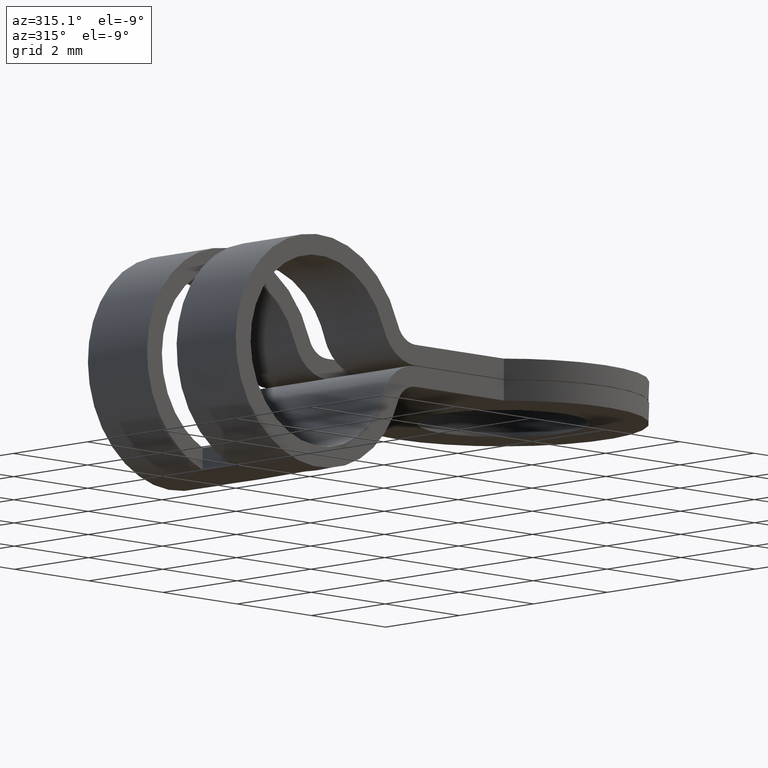
[diagram: clean part render]
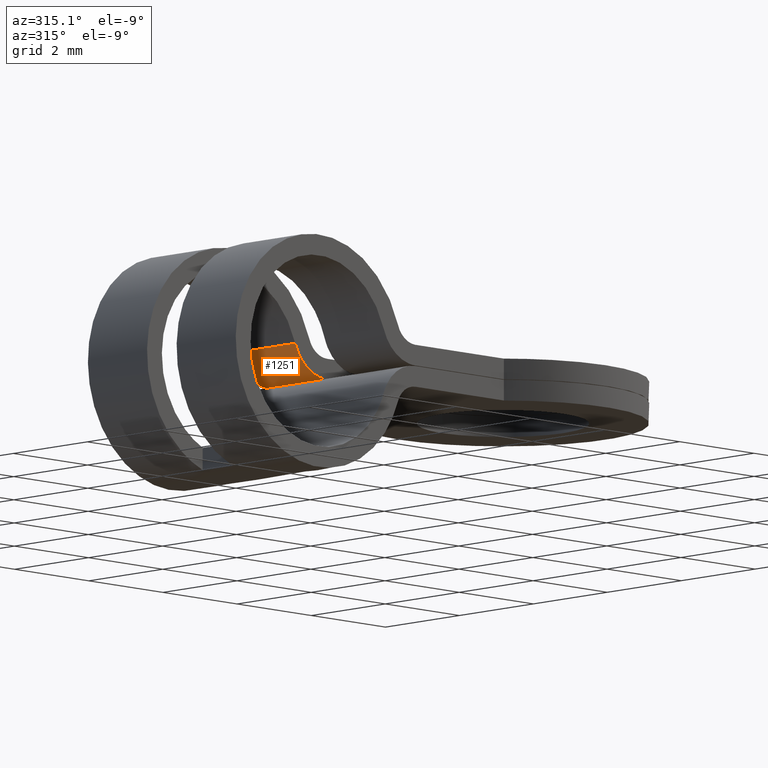
[diagram: same view with one face highlighted and labeled with its STEP entity id]
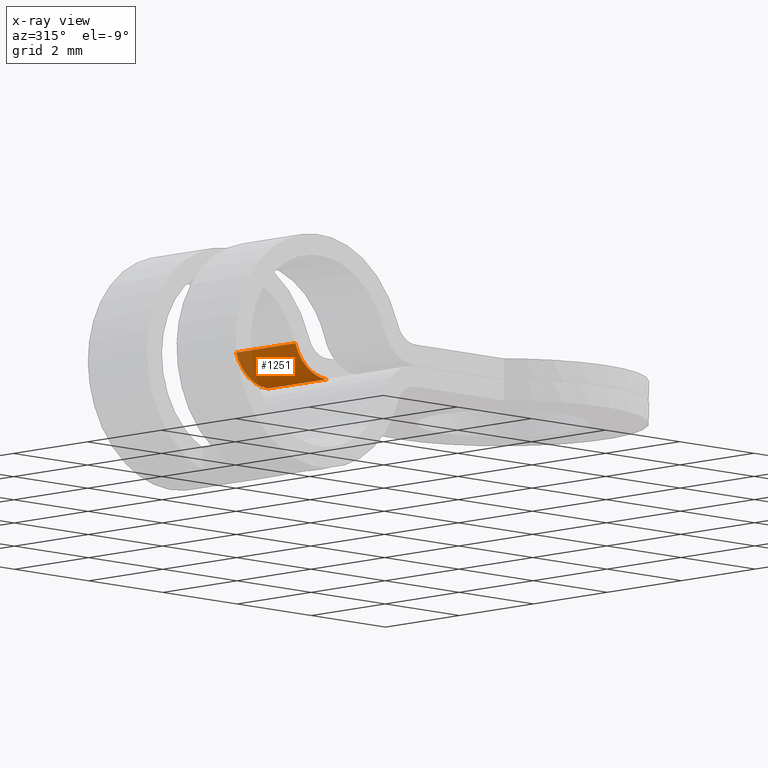
[diagram: x-ray of the same camera — body ghosted, the highlighted face saturated]
A machine part, auxiliary view. The second image highlights one B-rep face of the part: STEP entity #1251.
The next image is the same camera in x-ray: the body ghosted, the highlighted face saturated — about 14% of this face is hidden behind the body in this view.
In plain terms, the highlighted face is a freeform B-spline surface patch.
Its self-contained STEP definition (entity closure, byte-faithful):
#248=CARTESIAN_POINT('',(1.996951751333620,0.399999999999956,0.608818181818182));
#249=VERTEX_POINT('',#248);
#267=CARTESIAN_POINT('',(2.846820170901330,0.399999999999956,0.005000000000000));
#268=VERTEX_POINT('',#267);
#269=CARTESIAN_POINT('',(1.996951751333622,0.399999999999956,0.608818181818183));
#270=CARTESIAN_POINT('',(2.207384287505652,0.399999999999956,0.005000000000000));
#271=CARTESIAN_POINT('',(2.846820170901330,0.399999999999956,0.005000000000000));
#279=(BOUNDED_CURVE()B_SPLINE_CURVE(2,(#269,#270,#271),.UNSPECIFIED.,.F.,.U.)CURVE()GEOMETRIC_REPRESENTATION_ITEM()QUASI_UNIFORM_CURVE()RATIONAL_B_SPLINE_CURVE((1.0,0.815196574174262,1.0))REPRESENTATION_ITEM(''));
#280=EDGE_CURVE('',#249,#268,#279,.T.);
#618=CARTESIAN_POINT('',(1.996951751333620,1.999999999999780,0.608818181818182));
#619=VERTEX_POINT('',#618);
#620=CARTESIAN_POINT('',(1.996951751333620,1.999999999999780,0.608818181818182));
#621=CARTESIAN_POINT('',(1.996951751333620,0.399999999999956,0.608818181818182));
#622=QUASI_UNIFORM_CURVE('',1,(#620,#621),.UNSPECIFIED.,.F.,.U.);
#623=EDGE_CURVE('',#619,#249,#622,.T.);
#961=CARTESIAN_POINT('',(2.846820170901330,1.999999999999780,0.005000000000000));
#962=VERTEX_POINT('',#961);
#963=CARTESIAN_POINT('',(2.846820170901330,1.999999999999780,0.005000000000000));
#964=CARTESIAN_POINT('',(2.207384287505654,1.999999999999781,0.005000000000000));
#965=CARTESIAN_POINT('',(1.996951751333622,1.999999999999780,0.608818181818183));
#973=(BOUNDED_CURVE()B_SPLINE_CURVE(2,(#963,#964,#965),.UNSPECIFIED.,.F.,.U.)CURVE()GEOMETRIC_REPRESENTATION_ITEM()QUASI_UNIFORM_CURVE()RATIONAL_B_SPLINE_CURVE((1.0,0.815196574174262,1.0))REPRESENTATION_ITEM(''));
#974=EDGE_CURVE('',#962,#619,#973,.T.);
#1180=CARTESIAN_POINT('',(2.846820170901330,1.999999999999780,0.005000000000000));
#1181=CARTESIAN_POINT('',(2.846820170901330,0.399999999999956,0.005000000000000));
#1182=QUASI_UNIFORM_CURVE('',1,(#1180,#1181),.UNSPECIFIED.,.F.,.U.);
#1183=EDGE_CURVE('',#962,#268,#1182,.T.);
#1231=CARTESIAN_POINT('',(2.873733428825218,2.039999999999776,0.005402491917679));
#1232=CARTESIAN_POINT('',(2.873733428825218,0.358999999999961,0.005402491917679));
#1233=CARTESIAN_POINT('',(2.173282868456643,2.039999999999777,-0.015552886932043));
#1234=CARTESIAN_POINT('',(2.173282868456643,0.358999999999960,-0.015552886932043));
#1235=CARTESIAN_POINT('',(1.981266153324513,2.039999999999776,0.658390505745155));
#1236=CARTESIAN_POINT('',(1.981266153324513,0.358999999999960,0.658390505745155));
#1244=(BOUNDED_SURFACE()B_SPLINE_SURFACE(1,2,((#1231,#1233,#1235),(#1232,#1234,#1236)),.UNSPECIFIED.,.F.,.F.,.U.)B_SPLINE_SURFACE_WITH_KNOTS((2,2),(3,3),(0.0,1.0),(0.0,0.983385447861720),.UNSPECIFIED.)GEOMETRIC_REPRESENTATION_ITEM()RATIONAL_B_SPLINE_SURFACE(((1.0,0.786220024964826,0.992896282917316),(1.0,0.786220024964826,0.992896282917316)))REPRESENTATION_ITEM('')SURFACE());
#1245=ORIENTED_EDGE('',*,*,#280,.F.);
#1246=ORIENTED_EDGE('',*,*,#623,.F.);
#1247=ORIENTED_EDGE('',*,*,#974,.F.);
#1248=ORIENTED_EDGE('',*,*,#1183,.T.);
#1249=EDGE_LOOP('',(#1245,#1246,#1247,#1248));
#1250=FACE_OUTER_BOUND('',#1249,.T.);
#1251=ADVANCED_FACE('',(#1250),#1244,.T.);